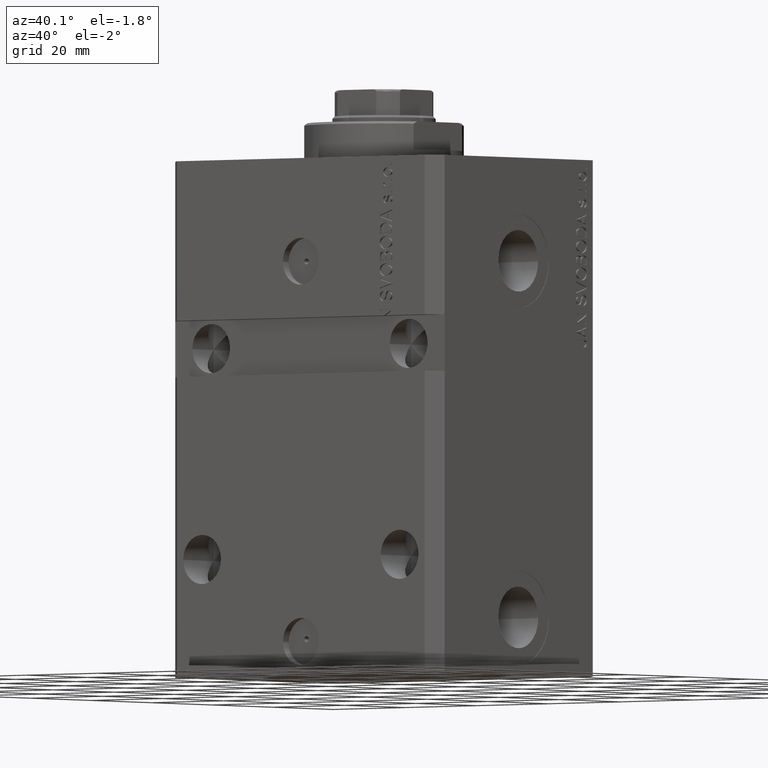
[diagram: clean part render]
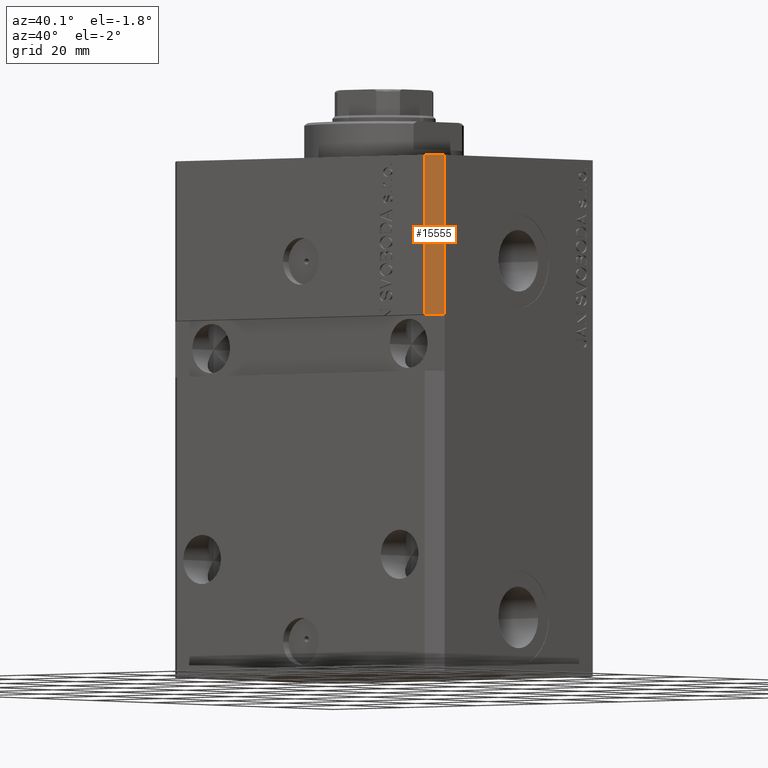
[diagram: same view with one face highlighted and labeled with its STEP entity id]
A machine part, auxiliary view. The second image highlights one B-rep face of the part: STEP entity #15555.
In plain terms, the highlighted planar face has unit normal (0.7071, -0.7071, 0).
Its self-contained STEP definition (entity closure, byte-faithful):
#530 = CARTESIAN_POINT ( 'NONE',  ( 34.49999999999997868, -27.50000000000000711, -33.99999999999998579 ) ) ;
#610 = DIRECTION ( 'NONE',  ( 0.000000000000000000, 0.000000000000000000, 1.000000000000000000 ) ) ;
#1203 = CARTESIAN_POINT ( 'NONE',  ( 34.49999999999999289, -27.49999999999999645, 0.000000000000000000 ) ) ;
#5171 = PLANE ( 'NONE',  #6975 ) ;
#6741 = ORIENTED_EDGE ( 'NONE', *, *, #42609, .F. ) ;
#6975 = AXIS2_PLACEMENT_3D ( 'NONE', #15433, #19090, #35993 ) ;
#8929 = CARTESIAN_POINT ( 'NONE',  ( 34.49999999999999289, -27.49999999999999289, -33.99999999999997868 ) ) ;
#9600 = EDGE_LOOP ( 'NONE', ( #6741, #35607, #29131, #14452 ) ) ;
#13944 = VECTOR ( 'NONE', #38633, 1000.000000000000114 ) ;
#14006 = CARTESIAN_POINT ( 'NONE',  ( 34.49999999999999289, -27.49999999999999645, -110.0000000000000000 ) ) ;
#14233 = LINE ( 'NONE', #14006, #32110 ) ;
#14452 = ORIENTED_EDGE ( 'NONE', *, *, #30682, .F. ) ;
#14657 = LINE ( 'NONE', #530, #44051 ) ;
#15433 = CARTESIAN_POINT ( 'NONE',  ( 34.49999999999999289, -27.49999999999999645, -110.0000000000000000 ) ) ;
#15555 = ADVANCED_FACE ( 'NONE', ( #29129 ), #5171, .T. ) ;
#16486 = EDGE_CURVE ( 'NONE', #29703, #21329, #42599, .T. ) ;
#19090 = DIRECTION ( 'NONE',  ( 0.7071067811865475727, -0.7071067811865475727, 0.000000000000000000 ) ) ;
#21329 = VERTEX_POINT ( 'NONE', #41485 ) ;
#23028 = VECTOR ( 'NONE', #610, 1000.000000000000000 ) ;
#24688 = VERTEX_POINT ( 'NONE', #8929 ) ;
#25694 = CARTESIAN_POINT ( 'NONE',  ( 37.49999999999999289, -24.50000000000000000, -110.0000000000000000 ) ) ;
#28802 = DIRECTION ( 'NONE',  ( -0.7071067811865474617, -0.7071067811865474617, -1.962615573354719390E-16 ) ) ;
#29129 = FACE_OUTER_BOUND ( 'NONE', #9600, .T. ) ;
#29131 = ORIENTED_EDGE ( 'NONE', *, *, #32761, .F. ) ;
#29703 = VERTEX_POINT ( 'NONE', #34331 ) ;
#30682 = EDGE_CURVE ( 'NONE', #24688, #38762, #14233, .T. ) ;
#32110 = VECTOR ( 'NONE', #42286, 1000.000000000000000 ) ;
#32761 = EDGE_CURVE ( 'NONE', #38762, #21329, #34299, .T. ) ;
#34299 = LINE ( 'NONE', #41607, #13944 ) ;
#34331 = CARTESIAN_POINT ( 'NONE',  ( 37.49999999999999289, -24.49999999999999289, -33.99999999999997868 ) ) ;
#35607 = ORIENTED_EDGE ( 'NONE', *, *, #16486, .T. ) ;
#35993 = DIRECTION ( 'NONE',  ( 0.7071067811865474617, 0.7071067811865474617, 0.000000000000000000 ) ) ;
#38633 = DIRECTION ( 'NONE',  ( 0.7071067811865474617, 0.7071067811865474617, 0.000000000000000000 ) ) ;
#38762 = VERTEX_POINT ( 'NONE', #1203 ) ;
#41485 = CARTESIAN_POINT ( 'NONE',  ( 37.49999999999999289, -24.50000000000000000, 0.000000000000000000 ) ) ;
#41607 = CARTESIAN_POINT ( 'NONE',  ( 34.49999999999999289, -27.49999999999999645, 0.000000000000000000 ) ) ;
#42286 = DIRECTION ( 'NONE',  ( 0.000000000000000000, 0.000000000000000000, 1.000000000000000000 ) ) ;
#42599 = LINE ( 'NONE', #25694, #23028 ) ;
#42609 = EDGE_CURVE ( 'NONE', #29703, #24688, #14657, .T. ) ;
#44051 = VECTOR ( 'NONE', #28802, 1000.000000000000114 ) ;